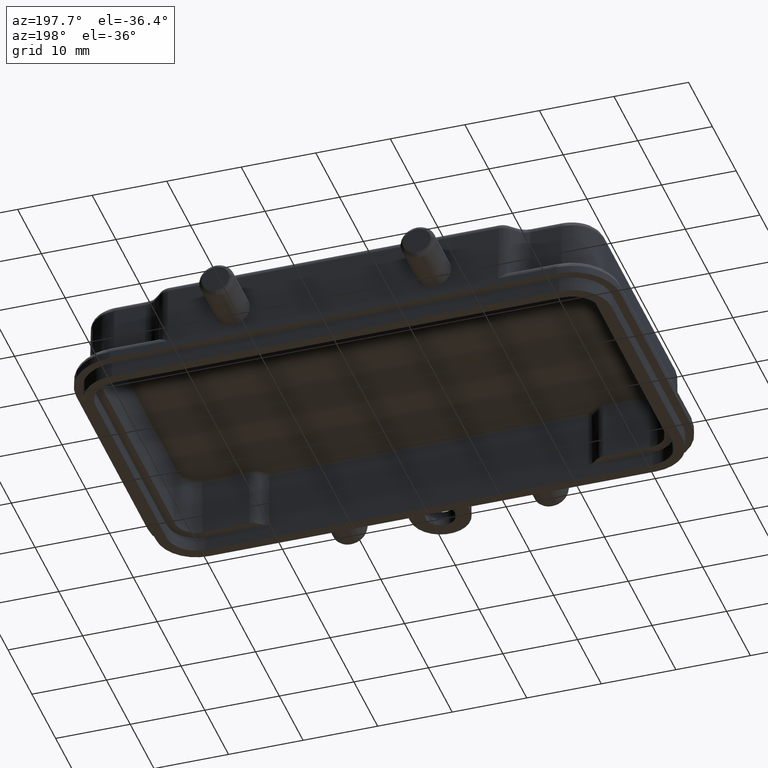
[diagram: clean part render]
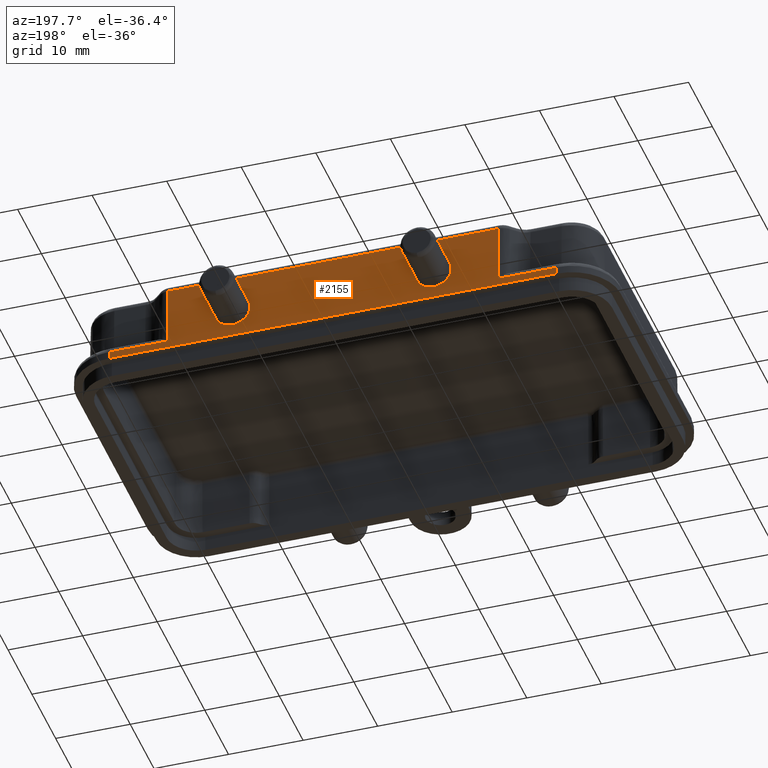
[diagram: same view with one face highlighted and labeled with its STEP entity id]
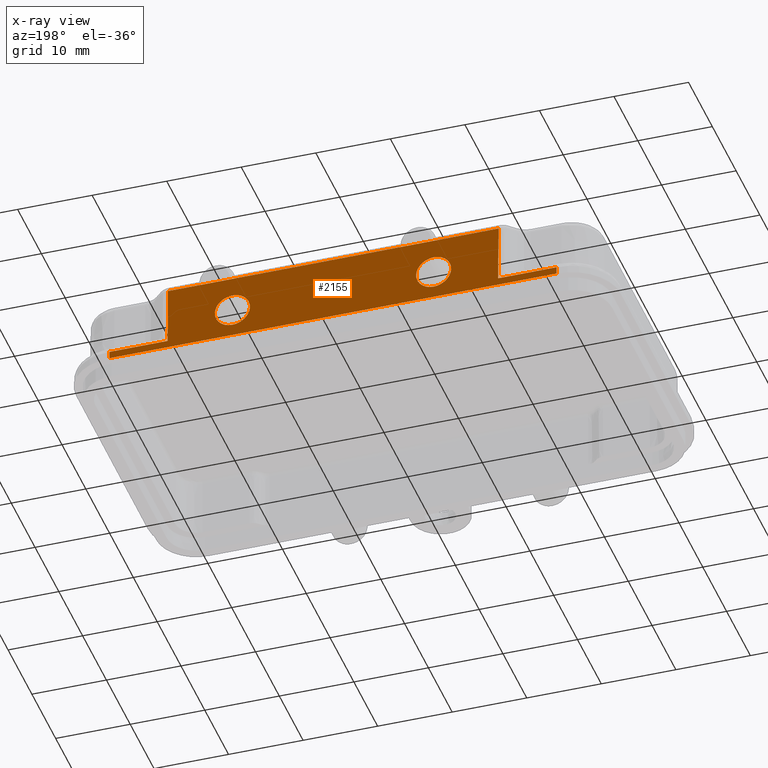
[diagram: x-ray of the same camera — body ghosted, the highlighted face saturated]
A machine part, auxiliary view. The second image highlights one B-rep face of the part: STEP entity #2155.
The next image is the same camera in x-ray: the body ghosted, the highlighted face saturated — about 0% of this face is hidden behind the body in this view.
In plain terms, the highlighted planar face has unit normal (-0, 0.9998, 0.0175).
Its self-contained STEP definition (entity closure, byte-faithful):
#10 = CARTESIAN_POINT ( 'NONE',  ( 0.7165354330708660902, 0.8453228009003324050, 0.1437007874015747977 ) ) ;
#113 = LINE ( 'NONE', #1164, #3896 ) ;
#185 = AXIS2_PLACEMENT_3D ( 'NONE', #1028, #2125, #477 ) ;
#415 = EDGE_CURVE ( 'NONE', #1450, #1009, #5452, .T. ) ;
#436 = CARTESIAN_POINT ( 'NONE',  ( -0.5314960629921260393, 0.8420929266813315106, 0.3287401574803149873 ) ) ;
#446 = DIRECTION ( 'NONE',  ( 3.205955048462720362E-18, -0.01745240641734325041, 0.9998476951567392135 ) ) ;
#472 = CARTESIAN_POINT ( 'NONE',  ( -0.7165354330708660902, 0.8420929266813315106, 0.3287401574803149873 ) ) ;
#477 = DIRECTION ( 'NONE',  ( 0.000000000000000000, -0.01745240643728350471, 0.9998476951563912696 ) ) ;
#591 = CARTESIAN_POINT ( 'NONE',  ( 0.5314960629921260393, 0.8420929266813315106, 0.3287401574803149873 ) ) ;
#717 = CARTESIAN_POINT ( 'NONE',  ( -0.8728965698918819127, 0.8464566929133858775, 0.07874015748031495954 ) ) ;
#723 =( BOUNDED_CURVE ( )  B_SPLINE_CURVE ( 3, ( #3571, #10, #6682, #591 ),
 .UNSPECIFIED., .F., .F. ) 
 B_SPLINE_CURVE_WITH_KNOTS ( ( 4, 4 ),
 ( 3.141592653589793116, 6.283185307179586232 ),
 .UNSPECIFIED. ) 
 CURVE ( )  GEOMETRIC_REPRESENTATION_ITEM ( )  RATIONAL_B_SPLINE_CURVE ( ( 1.000000000000000000, 0.3333333333333333703, 0.3333333333333333703, 1.000000000000000000 ) ) 
 REPRESENTATION_ITEM ( '' )  );
#764 = EDGE_CURVE ( 'NONE', #1978, #1009, #6175, .T. ) ;
#920 = CARTESIAN_POINT ( 'NONE',  ( 0.5314960629921260393, 0.8453228009003324050, 0.1437007874015747977 ) ) ;
#1009 = VERTEX_POINT ( 'NONE', #1607 ) ;
#1028 = CARTESIAN_POINT ( 'NONE',  ( 1.437007874015747921, 0.8464566929133858775, 0.07874015748031495954 ) ) ;
#1062 = ORIENTED_EDGE ( 'NONE', *, *, #5932, .T. ) ;
#1107 = ORIENTED_EDGE ( 'NONE', *, *, #415, .F. ) ;
#1164 = CARTESIAN_POINT ( 'NONE',  ( 0.8728965698918819127, 0.8464566929133858775, 0.07874015748031495954 ) ) ;
#1172 = DIRECTION ( 'NONE',  ( 1.000000000000000000, 0.000000000000000000, 0.000000000000000000 ) ) ;
#1205 = CARTESIAN_POINT ( 'NONE',  ( -0.3464566929133858775, 0.8453228009003324050, 0.1437007874015747977 ) ) ;
#1268 = LINE ( 'NONE', #717, #4897 ) ;
#1306 = DIRECTION ( 'NONE',  ( 0.000000000000000000, -0.01745240643728350471, 0.9998476951563912696 ) ) ;
#1322 = ORIENTED_EDGE ( 'NONE', *, *, #3229, .T. ) ;
#1333 = CARTESIAN_POINT ( 'NONE',  ( 1.181102362204724310, 0.8402598339668698735, 0.4337579687573740461 ) ) ;
#1353 = CARTESIAN_POINT ( 'NONE',  ( 0.5314960629921260393, 0.8420929266813315106, 0.3287401574803149873 ) ) ;
#1450 = VERTEX_POINT ( 'NONE', #2729 ) ;
#1454 = DIRECTION ( 'NONE',  ( -1.000000000000000000, -0.000000000000000000, -0.000000000000000000 ) ) ;
#1500 = FACE_BOUND ( 'NONE', #7126, .T. ) ;
#1607 = CARTESIAN_POINT ( 'NONE',  ( 1.181102362204724310, 0.8457574922123670680, 0.1187973388358723736 ) ) ;
#1646 = EDGE_CURVE ( 'NONE', #4317, #1959, #3115, .T. ) ;
#1827 = CARTESIAN_POINT ( 'NONE',  ( 0.8728965698918819127, 0.8457574922121843253, 0.1187973388357252275 ) ) ;
#1837 = EDGE_CURVE ( 'NONE', #6801, #1942, #7189, .T. ) ;
#1942 = VERTEX_POINT ( 'NONE', #4508 ) ;
#1959 = VERTEX_POINT ( 'NONE', #5157 ) ;
#1978 = VERTEX_POINT ( 'NONE', #1827 ) ;
#2088 = VERTEX_POINT ( 'NONE', #3546 ) ;
#2125 = DIRECTION ( 'NONE',  ( -0.000000000000000000, 0.9998476951563912696, 0.01745240643728350471 ) ) ;
#2155 = ADVANCED_FACE ( 'NONE', ( #6491, #4320, #1500 ), #2160, .T. ) ;
#2160 = PLANE ( 'NONE',  #185 ) ;
#2178 = VERTEX_POINT ( 'NONE', #920 ) ;
#2210 = CARTESIAN_POINT ( 'NONE',  ( 1.437007874015747921, 0.8457574922119790450, 0.1187973388361133892 ) ) ;
#2534 =( BOUNDED_CURVE ( )  B_SPLINE_CURVE ( 3, ( #436, #472, #4960, #6595 ),
 .UNSPECIFIED., .F., .T. ) 
 B_SPLINE_CURVE_WITH_KNOTS ( ( 4, 4 ),
 ( 0.000000000000000000, 3.141592653589793116 ),
 .UNSPECIFIED. ) 
 CURVE ( )  GEOMETRIC_REPRESENTATION_ITEM ( )  RATIONAL_B_SPLINE_CURVE ( ( 1.000000000000000000, 0.3333333333333333703, 0.3333333333333333703, 1.000000000000000000 ) ) 
 REPRESENTATION_ITEM ( '' )  );
#2694 = EDGE_CURVE ( 'NONE', #1942, #1959, #1268, .T. ) ;
#2729 = CARTESIAN_POINT ( 'NONE',  ( 1.181102362204724310, 0.8464566929133637840, 0.07874015748059694231 ) ) ;
#2912 = EDGE_CURVE ( 'NONE', #6801, #2088, #6425, .T. ) ;
#2959 = CARTESIAN_POINT ( 'NONE',  ( -0.3464566929133858775, 0.8420929266813315106, 0.3287401574803149873 ) ) ;
#3018 = CARTESIAN_POINT ( 'NONE',  ( 0.8728965698918819127, 0.8402598339668706506, 0.4337579687573740461 ) ) ;
#3032 = CARTESIAN_POINT ( 'NONE',  ( -0.5314960629921260393, 0.8453228009003324050, 0.1437007874015747977 ) ) ;
#3115 = LINE ( 'NONE', #1333, #3446 ) ;
#3127 = EDGE_CURVE ( 'NONE', #4317, #1978, #113, .T. ) ;
#3203 = VECTOR ( 'NONE', #4436, 39.37007874015748143 ) ;
#3229 = EDGE_CURVE ( 'NONE', #6987, #2178, #3550, .T. ) ;
#3273 = ORIENTED_EDGE ( 'NONE', *, *, #3345, .T. ) ;
#3345 = EDGE_CURVE ( 'NONE', #4659, #6578, #2534, .T. ) ;
#3371 = CARTESIAN_POINT ( 'NONE',  ( -0.5314960629921260393, 0.8453228009003324050, 0.1437007874015747977 ) ) ;
#3446 = VECTOR ( 'NONE', #3555, 39.37007874015748143 ) ;
#3516 =( BOUNDED_CURVE ( )  B_SPLINE_CURVE ( 3, ( #3032, #1205, #2959, #6857 ),
 .UNSPECIFIED., .F., .F. ) 
 B_SPLINE_CURVE_WITH_KNOTS ( ( 4, 4 ),
 ( 3.141592653589793116, 6.283185307179586232 ),
 .UNSPECIFIED. ) 
 CURVE ( )  GEOMETRIC_REPRESENTATION_ITEM ( )  RATIONAL_B_SPLINE_CURVE ( ( 1.000000000000000000, 0.3333333333333333703, 0.3333333333333333703, 1.000000000000000000 ) ) 
 REPRESENTATION_ITEM ( '' )  );
#3546 = CARTESIAN_POINT ( 'NONE',  ( -1.181102362204724754, 0.8464566929133637840, 0.07874015748059694231 ) ) ;
#3550 =( BOUNDED_CURVE ( )  B_SPLINE_CURVE ( 3, ( #1353, #6962, #6305, #3652 ),
 .UNSPECIFIED., .F., .F. ) 
 B_SPLINE_CURVE_WITH_KNOTS ( ( 4, 4 ),
 ( 0.000000000000000000, 3.141592653589793116 ),
 .UNSPECIFIED. ) 
 CURVE ( )  GEOMETRIC_REPRESENTATION_ITEM ( )  RATIONAL_B_SPLINE_CURVE ( ( 1.000000000000000000, 0.3333333333333333703, 0.3333333333333333703, 1.000000000000000000 ) ) 
 REPRESENTATION_ITEM ( '' )  );
#3555 = DIRECTION ( 'NONE',  ( -1.000000000000000000, 0.000000000000000000, 0.000000000000000000 ) ) ;
#3571 = CARTESIAN_POINT ( 'NONE',  ( 0.5314960629921260393, 0.8453228009003324050, 0.1437007874015747977 ) ) ;
#3604 = ORIENTED_EDGE ( 'NONE', *, *, #1837, .T. ) ;
#3652 = CARTESIAN_POINT ( 'NONE',  ( 0.5314960629921260393, 0.8453228009003324050, 0.1437007874015747977 ) ) ;
#3687 = VECTOR ( 'NONE', #446, 39.37007874015748143 ) ;
#3896 = VECTOR ( 'NONE', #6751, 39.37007874015748143 ) ;
#4197 = LINE ( 'NONE', #6409, #6413 ) ;
#4317 = VERTEX_POINT ( 'NONE', #3018 ) ;
#4320 = FACE_OUTER_BOUND ( 'NONE', #6723, .T. ) ;
#4338 = ORIENTED_EDGE ( 'NONE', *, *, #3127, .T. ) ;
#4436 = DIRECTION ( 'NONE',  ( 1.000000000000000000, 0.000000000000000000, 0.000000000000000000 ) ) ;
#4488 = ORIENTED_EDGE ( 'NONE', *, *, #1646, .F. ) ;
#4508 = CARTESIAN_POINT ( 'NONE',  ( -0.8728965698920376770, 0.8457574922123698435, 0.1187973388358390670 ) ) ;
#4561 = EDGE_CURVE ( 'NONE', #6578, #4659, #3516, .T. ) ;
#4659 = VERTEX_POINT ( 'NONE', #6452 ) ;
#4870 = CARTESIAN_POINT ( 'NONE',  ( 0.5314960629921260393, 0.8420929266813315106, 0.3287401574803149873 ) ) ;
#4897 = VECTOR ( 'NONE', #1306, 39.37007874015748143 ) ;
#4960 = CARTESIAN_POINT ( 'NONE',  ( -0.7165354330708660902, 0.8453228009003324050, 0.1437007874015748254 ) ) ;
#5087 = EDGE_CURVE ( 'NONE', #1450, #2088, #4197, .T. ) ;
#5157 = CARTESIAN_POINT ( 'NONE',  ( -0.8728965698918819127, 0.8402598339686244699, 0.4337579687576293419 ) ) ;
#5166 = ORIENTED_EDGE ( 'NONE', *, *, #2912, .F. ) ;
#5233 = CARTESIAN_POINT ( 'NONE',  ( -1.181102362204787593, 343.7642637541595150, -19645.66929133858139 ) ) ;
#5452 = LINE ( 'NONE', #7074, #3687 ) ;
#5786 = VECTOR ( 'NONE', #1172, 39.37007874015748143 ) ;
#5889 = DIRECTION ( 'NONE',  ( -3.205955048462720362E-18, 0.01745240641734325041, -0.9998476951567392135 ) ) ;
#5932 = EDGE_CURVE ( 'NONE', #2178, #6987, #723, .T. ) ;
#5985 = ORIENTED_EDGE ( 'NONE', *, *, #5087, .T. ) ;
#6068 = ORIENTED_EDGE ( 'NONE', *, *, #2694, .T. ) ;
#6102 = CARTESIAN_POINT ( 'NONE',  ( 1.437007874015747921, 0.8457574922119790450, 0.1187973388361133892 ) ) ;
#6175 = LINE ( 'NONE', #6102, #5786 ) ;
#6192 = ORIENTED_EDGE ( 'NONE', *, *, #4561, .T. ) ;
#6305 = CARTESIAN_POINT ( 'NONE',  ( 0.3464566929133858775, 0.8453228009003324050, 0.1437007874015748254 ) ) ;
#6409 = CARTESIAN_POINT ( 'NONE',  ( 1.437007874015747921, 0.8464566929133858775, 0.07874015748031495954 ) ) ;
#6413 = VECTOR ( 'NONE', #1454, 39.37007874015748143 ) ;
#6425 = LINE ( 'NONE', #5233, #6984 ) ;
#6452 = CARTESIAN_POINT ( 'NONE',  ( -0.5314960629921260393, 0.8420929266813315106, 0.3287401574803149873 ) ) ;
#6491 = FACE_BOUND ( 'NONE', #6862, .T. ) ;
#6578 = VERTEX_POINT ( 'NONE', #3371 ) ;
#6595 = CARTESIAN_POINT ( 'NONE',  ( -0.5314960629921260393, 0.8453228009003324050, 0.1437007874015747977 ) ) ;
#6682 = CARTESIAN_POINT ( 'NONE',  ( 0.7165354330708660902, 0.8420929266813315106, 0.3287401574803149873 ) ) ;
#6723 = EDGE_LOOP ( 'NONE', ( #1107, #5985, #5166, #3604, #6068, #4488, #4338, #7207 ) ) ;
#6751 = DIRECTION ( 'NONE',  ( -0.000000000000000000, 0.01745240643728350471, -0.9998476951563912696 ) ) ;
#6801 = VERTEX_POINT ( 'NONE', #7012 ) ;
#6857 = CARTESIAN_POINT ( 'NONE',  ( -0.5314960629921260393, 0.8420929266813315106, 0.3287401574803149873 ) ) ;
#6862 = EDGE_LOOP ( 'NONE', ( #6192, #3273 ) ) ;
#6962 = CARTESIAN_POINT ( 'NONE',  ( 0.3464566929133858775, 0.8420929266813315106, 0.3287401574803149873 ) ) ;
#6984 = VECTOR ( 'NONE', #5889, 39.37007874015748143 ) ;
#6987 = VERTEX_POINT ( 'NONE', #4870 ) ;
#7012 = CARTESIAN_POINT ( 'NONE',  ( -1.181102362204724754, 0.8457574922123622940, 0.1187973388358723736 ) ) ;
#7074 = CARTESIAN_POINT ( 'NONE',  ( 1.181102362204661471, 343.7642637541595150, -19645.66929133858139 ) ) ;
#7126 = EDGE_LOOP ( 'NONE', ( #1062, #1322 ) ) ;
#7189 = LINE ( 'NONE', #2210, #3203 ) ;
#7207 = ORIENTED_EDGE ( 'NONE', *, *, #764, .T. ) ;